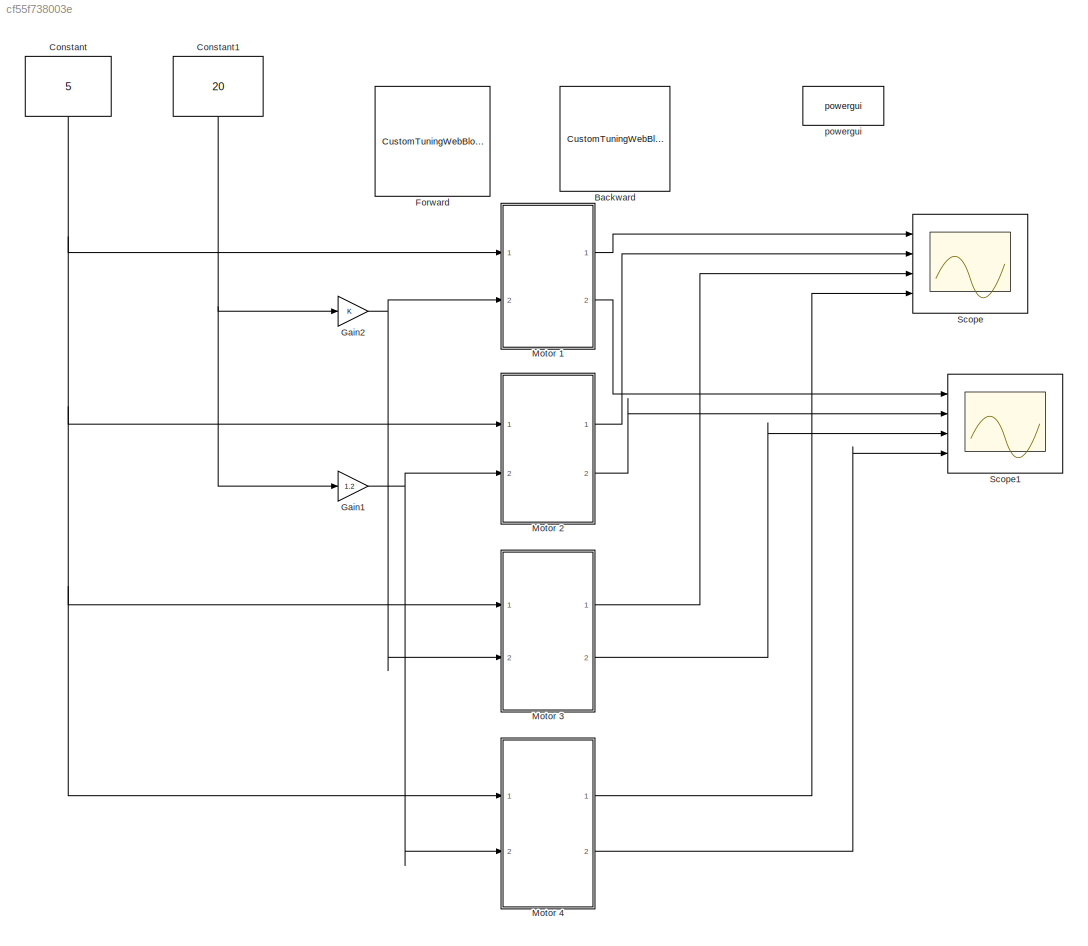
MODEL slx_cf55f738003e
KIND model
CONFIG AbsTol = auto
CONFIG EnableMultiTasking = off
CONFIG FixedStep = auto
CONFIG MaxStep = auto
CONFIG MinStep = auto
CONFIG RelTol = 1e-3
CONFIG SampleTimeConstraint = Unconstrained
CONFIG SolverName = VariableStepAuto
CONFIG StartTime = 0.0
CONFIG StopTime = 1
BLOCK [CustomTuningWebBlock] Backward
  Configuration = {"components":[{"name":"CircularScaleComponent","settings":{"bounds":{"max":1.5,"min":0.5,"tickInterval":"auto"},"direction":"cw","flipLimits":0,"innerRadius":0.6636618227670849,"internalTickHeightScaleFactor":1,"labelColor":[255,255,200],"labelFont":{"font":"Arial","fontSize":12},"labelTransparency":1,"minorTickHeightScaleFactor":0.2,"needleImage":{"size":[150,150],"src":"data:image\/svg+xml;base...<+43653ch>
  LabelPosition = Hide
  ShowInitialText = on
BLOCK [Constant] Constant
  NameLocation = left
  Value = 5
BLOCK [Constant] Constant1
  NameLocation = left
  Value = 20
BLOCK [CustomTuningWebBlock] Forward
  Configuration = {"components":[{"name":"CircularScaleComponent","settings":{"bounds":{"max":1.5,"min":0.5,"tickInterval":"auto"},"direction":"cw","flipLimits":0,"innerRadius":0.6636618227670849,"internalTickHeightScaleFactor":1,"labelColor":[255,255,200],"labelFont":{"font":"Arial","fontSize":12},"labelTransparency":1,"minorTickHeightScaleFactor":0.2,"needleImage":{"size":[150,150],"src":"data:image\/svg+xml;base...<+43653ch>
  LabelPosition = Hide
  ShowInitialText = on
BLOCK [Gain] Gain1
  Gain = 1.2
BLOCK [Gain] Gain2
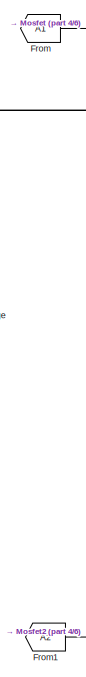
[diagram: Motor 1 - part 1/6, top left region]
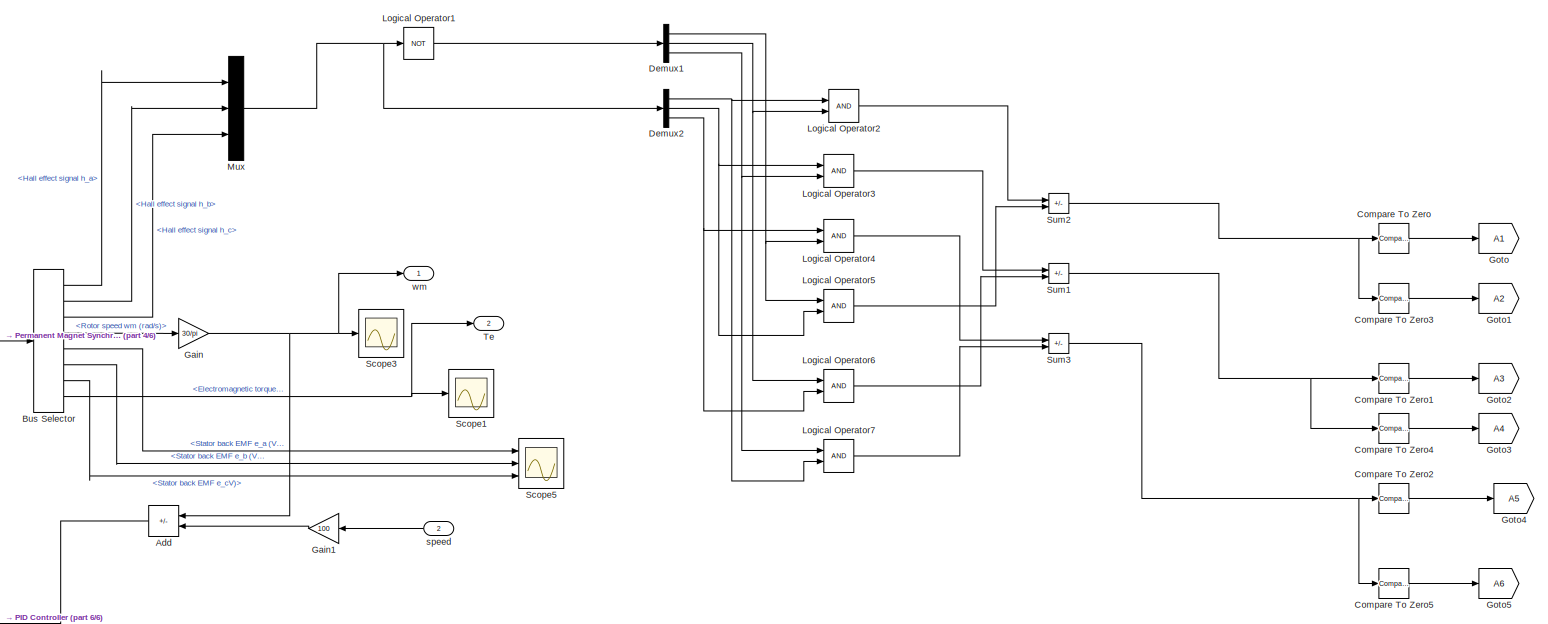
[diagram: Motor 1 - part 2/6, top right region]
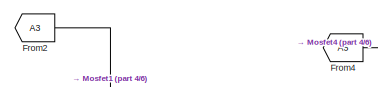
[diagram: Motor 1 - part 3/6, top left region]
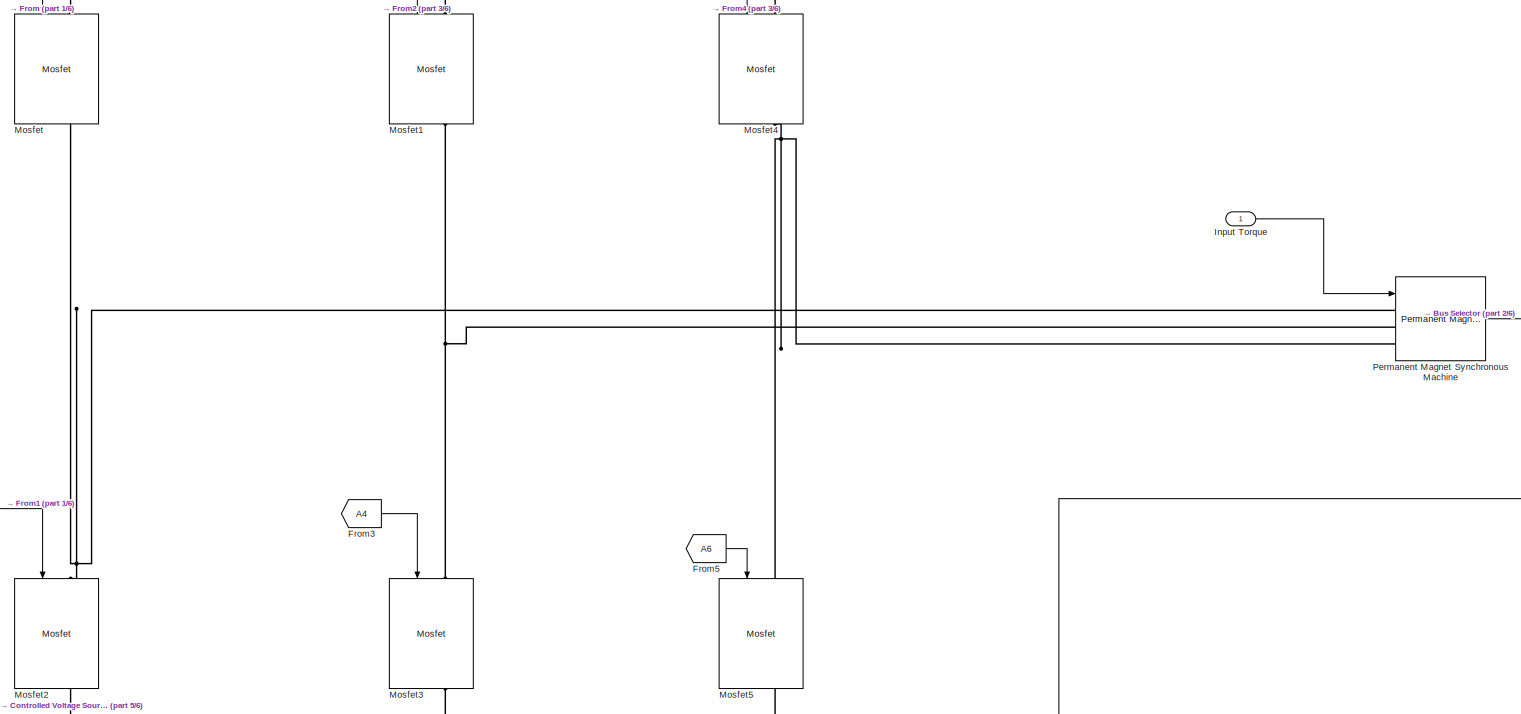
[diagram: Motor 1 - part 4/6, middle left region]
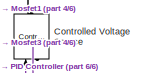
[diagram: Motor 1 - part 5/6, top left region]
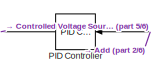
[diagram: Motor 1 - part 6/6, central region]
BLOCK [SubSystem] Motor 1
  Ports = [2, 2]
  RequestExecContextInheritance = off
BLOCK [Sum] Motor 1/Add
  IconShape = rectangular
  Inputs = -+
  Ports = [2, 1]
BLOCK [BusSelector] Motor 1/Bus Selector
  OutputSignals = Hall effect signal h_a,Hall effect signal h_b,Hall effect signal h_c,Rotor speed wm (rad/s),Stator back EMF e_a (V),Stator back EMF e_b (V),Stator back EMF e_cV),Electromagnetic torque Te (N*m)  <repeated x4 — deduplicated; at blocks: Bus Selector>
  Ports = [1, 8]
BLOCK [Reference] Motor 1/Compare To Zero  REF=simulink/Logic and Bit
Operations/Compare
To Zero
  NameLocation = top
  Ports = [1, 1]
  SourceBlock = simulink/Logic and Bit\nOperations/Compare\nTo Zero
  SourceProductBaseCode = SL
  SourceType = Compare To Zero
BLOCK [Reference] Motor 1/Compare To Zero1  REF=simulink/Logic and Bit
Operations/Compare
To Zero
  NameLocation = top
  Ports = [1, 1]
  SourceBlock = simulink/Logic and Bit\nOperations/Compare\nTo Zero
  SourceProductBaseCode = SL
  SourceType = Compare To Zero
BLOCK [Reference] Motor 1/Compare To Zero2  REF=simulink/Logic and Bit
Operations/Compare
To Zero
  NameLocation = top
  Ports = [1, 1]
  SourceBlock = simulink/Logic and Bit\nOperations/Compare\nTo Zero
  SourceProductBaseCode = SL
  SourceType = Compare To Zero
BLOCK [Reference] Motor 1/Compare To Zero3  REF=simulink/Logic and Bit
Operations/Compare
To Zero
  NameLocation = top
  Ports = [1, 1]
  SourceBlock = simulink/Logic and Bit\nOperations/Compare\nTo Zero
  SourceProductBaseCode = SL
  SourceType = Compare To Zero
BLOCK [Reference] Motor 1/Compare To Zero4  REF=simulink/Logic and Bit
Operations/Compare
To Zero
  NameLocation = top
  Ports = [1, 1]
  SourceBlock = simulink/Logic and Bit\nOperations/Compare\nTo Zero
  SourceProductBaseCode = SL
  SourceType = Compare To Zero
BLOCK [Reference] Motor 1/Compare To Zero5  REF=simulink/Logic and Bit
Operations/Compare
To Zero
  NameLocation = top
  Ports = [1, 1]
  SourceBlock = simulink/Logic and Bit\nOperations/Compare\nTo Zero
  SourceProductBaseCode = SL
  SourceType = Compare To Zero
BLOCK [Reference] Motor 1/Controlled Voltage Source  REF=spsControlledVoltageSourceLib/Controlled Voltage Source
  Ports = [1, 0, 0, 0, 0, 1, 1]
  SourceBlock = spsControlledVoltageSourceLib/Controlled Voltage Source
  SourceProductBaseCode = PS
  SourceType = Controlled Voltage Source
BLOCK [Demux] Motor 1/Demux1
  Outputs = 3
  Ports = [1, 3]
BLOCK [Demux] Motor 1/Demux2
  Outputs = 3
  Ports = [1, 3]
BLOCK [From] Motor 1/From
  GotoTag = A1
BLOCK [From] Motor 1/From1
  GotoTag = A2
BLOCK [From] Motor 1/From2
  GotoTag = A3
BLOCK [From] Motor 1/From3
  GotoTag = A4
BLOCK [From] Motor 1/From4
  GotoTag = A5
BLOCK [From] Motor 1/From5
  GotoTag = A6
BLOCK [Gain] Motor 1/Gain
  Gain = 30/pi
BLOCK [Gain] Motor 1/Gain1
  Gain = 100
  NameLocation = top
BLOCK [Goto] Motor 1/Goto
  GotoTag = A1
BLOCK [Goto] Motor 1/Goto1
  GotoTag = A2
BLOCK [Goto] Motor 1/Goto2
  GotoTag = A3
BLOCK [Goto] Motor 1/Goto3
  GotoTag = A4
BLOCK [Goto] Motor 1/Goto4
  GotoTag = A5
BLOCK [Goto] Motor 1/Goto5
  GotoTag = A6
BLOCK [Inport] Motor 1/Input Torque
BLOCK [Logic] Motor 1/Logical Operator1
  AllPortsSameDT = off
  Operator = NOT
  OutDataTypeStr = boolean
  Ports = [1, 1]
BLOCK [Logic] Motor 1/Logical Operator2
  AllPortsSameDT = off
  OutDataTypeStr = boolean
  Ports = [2, 1]
BLOCK [Logic] Motor 1/Logical Operator3
  AllPortsSameDT = off
  OutDataTypeStr = boolean
  Ports = [2, 1]
BLOCK [Logic] Motor 1/Logical Operator4
  AllPortsSameDT = off
  OutDataTypeStr = boolean
  Ports = [2, 1]
BLOCK [Logic] Motor 1/Logical Operator5
  AllPortsSameDT = off
  OutDataTypeStr = boolean
  Ports = [2, 1]
BLOCK [Logic] Motor 1/Logical Operator6
  AllPortsSameDT = off
  OutDataTypeStr = boolean
  Ports = [2, 1]
BLOCK [Logic] Motor 1/Logical Operator7
  AllPortsSameDT = off
  OutDataTypeStr = boolean
  Ports = [2, 1]
BLOCK [Reference] Motor 1/Mosfet  REF=spsMosfetLib/Mosfet
  NameLocation = left
  Ports = [1, 1, 0, 0, 0, 1, 1]
  SourceBlock = spsMosfetLib/Mosfet
  SourceProductBaseCode = PS
  SourceType = Mosfet
BLOCK [Reference] Motor 1/Mosfet1  REF=spsMosfetLib/Mosfet
  NameLocation = left
  Ports = [1, 1, 0, 0, 0, 1, 1]
  SourceBlock = spsMosfetLib/Mosfet
  SourceProductBaseCode = PS
  SourceType = Mosfet
BLOCK [Reference] Motor 1/Mosfet2  REF=spsMosfetLib/Mosfet
  NameLocation = left
  Ports = [1, 1, 0, 0, 0, 1, 1]
  SourceBlock = spsMosfetLib/Mosfet
  SourceProductBaseCode = PS
  SourceType = Mosfet
BLOCK [Reference] Motor 1/Mosfet3  REF=spsMosfetLib/Mosfet
  NameLocation = left
  Ports = [1, 1, 0, 0, 0, 1, 1]
  SourceBlock = spsMosfetLib/Mosfet
  SourceProductBaseCode = PS
  SourceType = Mosfet
BLOCK [Reference] Motor 1/Mosfet4  REF=spsMosfetLib/Mosfet
  NameLocation = left
  Ports = [1, 1, 0, 0, 0, 1, 1]
  SourceBlock = spsMosfetLib/Mosfet
  SourceProductBaseCode = PS
  SourceType = Mosfet
BLOCK [Reference] Motor 1/Mosfet5  REF=spsMosfetLib/Mosfet
  NameLocation = left
  Ports = [1, 1, 0, 0, 0, 1, 1]
  SourceBlock = spsMosfetLib/Mosfet
  SourceProductBaseCode = PS
  SourceType = Mosfet
BLOCK [Mux] Motor 1/Mux
  DisplayOption = bar
  Inputs = 3
  Ports = [3, 1]
BLOCK [Reference] Motor 1/PID Controller  REF=slpidlib/PID Controller
  NameLocation = top
  Ports = [1, 1]
  SourceBlock = slpidlib/PID Controller
  SourceProductBaseCode = SL
  SourceType = PID 1dof
BLOCK [Reference] Motor 1/Permanent Magnet Synchronous Machine  REF=spsPermanentMagnetSynchronousMachineLib/Permanent Magnet
Synchronous Machine
  Ports = [1, 1, 0, 0, 0, 3]
  SourceBlock = spsPermanentMagnetSynchronousMachineLib/Permanent Magnet\nSynchronous Machine
  SourceProductBaseCode = PS
  SourceType = Permanent Magnet Synchronous Machine
BLOCK [Scope] Motor 1/Scope1
  Floating = off
  NumInputPorts = 1
  Ports = [1]
  ScopeSpecificationString = Simulink.scopes.TimeScopeBlockCfg('CurrentConfiguration', extmgr.ConfigurationSet(extmgr.Configuration('Core','General UI',true),extmgr.Configuration('Core','Source UI',true),extmgr.Configuration('Sources','WiredSimulink',true,'DataLoggingVariableName','ScopeData1'),extmgr.Configuration('Visuals','Time Domain',true,'SerializedDisplays',{struct('MinYLimReal','-15.67404','MaxYLimReal','52.63352','YL...<+1487ch>  <repeated x4 — deduplicated; at blocks: Scope1>
BLOCK [Scope] Motor 1/Scope3
  Floating = off
  NumInputPorts = 1
  Ports = [1]
  ScopeSpecificationString = Simulink.scopes.TimeScopeBlockCfg('CurrentConfiguration', extmgr.ConfigurationSet(extmgr.Configuration('Core','General UI',true),extmgr.Configuration('Core','Source UI',true),extmgr.Configuration('Sources','WiredSimulink',true,'DataLoggingVariableName','ScopeData2'),extmgr.Configuration('Visuals','Time Domain',true,'SerializedDisplays',{struct('MinYLimReal','-253.95955','MaxYLimReal','1375.95991',...<+1445ch>  <repeated x4 — deduplicated; at blocks: Scope3>
BLOCK [Scope] Motor 1/Scope5
  Floating = off
  NumInputPorts = 3
  Ports = [3]
  ScopeSpecificationString = Simulink.scopes.TimeScopeBlockCfg('CurrentConfiguration', extmgr.ConfigurationSet(extmgr.Configuration('Core','General UI',true),extmgr.Configuration('Core','Source UI',true),extmgr.Configuration('Sources','WiredSimulink',true),extmgr.Configuration('Visuals','Time Domain',true,'SerializedDisplays',{struct('MinYLimReal','-75.83196','MaxYLimReal','75.83196','YLabelReal','','MinYLimMag','0.00000','Ma...<+1459ch>  <repeated x4 — deduplicated; at blocks: Scope5>
BLOCK [Sum] Motor 1/Sum1
  IconShape = rectangular
  Inputs = +-
  OutDataTypeStr = double
  Ports = [2, 1]
BLOCK [Sum] Motor 1/Sum2
  IconShape = rectangular
  Inputs = +-
  OutDataTypeStr = double
  Ports = [2, 1]
BLOCK [Sum] Motor 1/Sum3
  IconShape = rectangular
  Inputs = +-
  OutDataTypeStr = double
  Ports = [2, 1]
BLOCK [Outport] Motor 1/Te
  Port = 2
BLOCK [Inport] Motor 1/speed
  Port = 2
BLOCK [Outport] Motor 1/wm
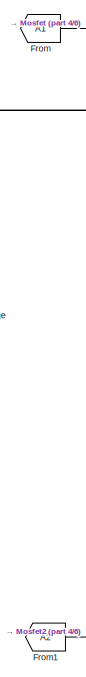
[diagram: Motor 2 - part 1/6, top left region]
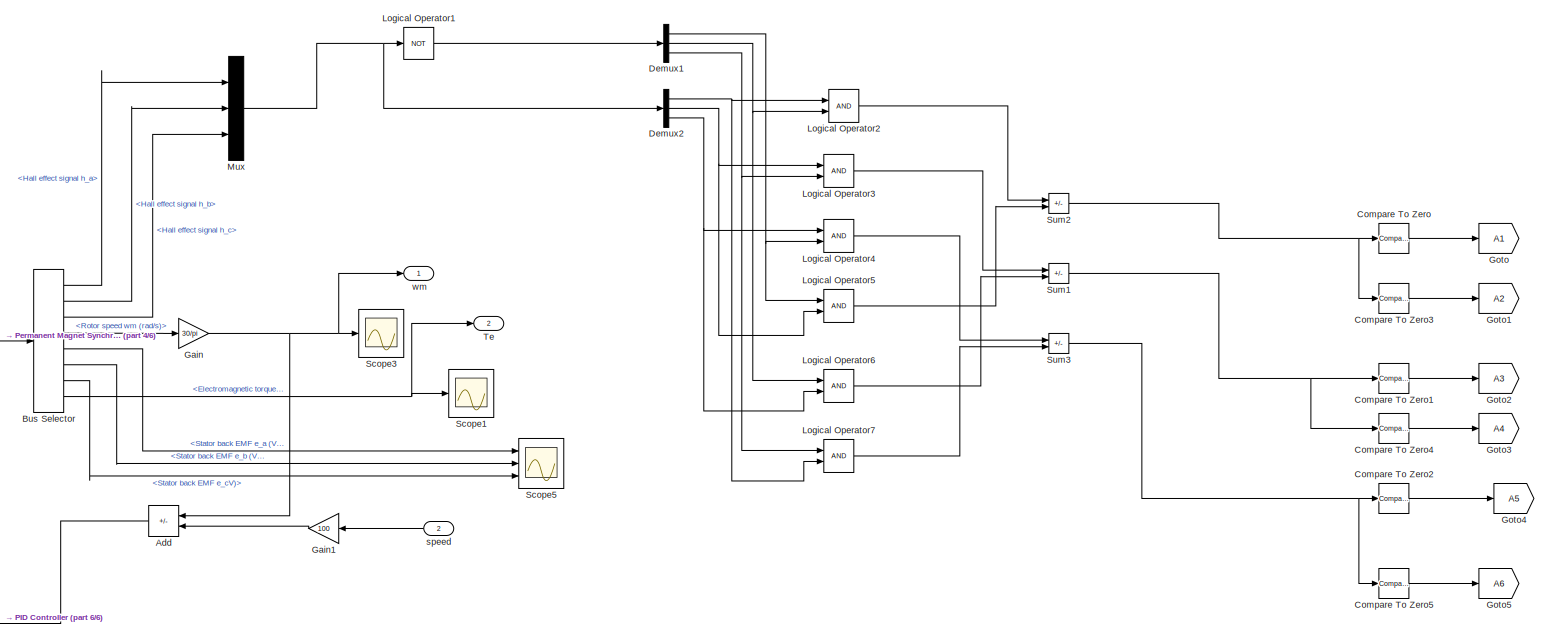
[diagram: Motor 2 - part 2/6, top right region]
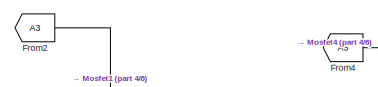
[diagram: Motor 2 - part 3/6, top left region]
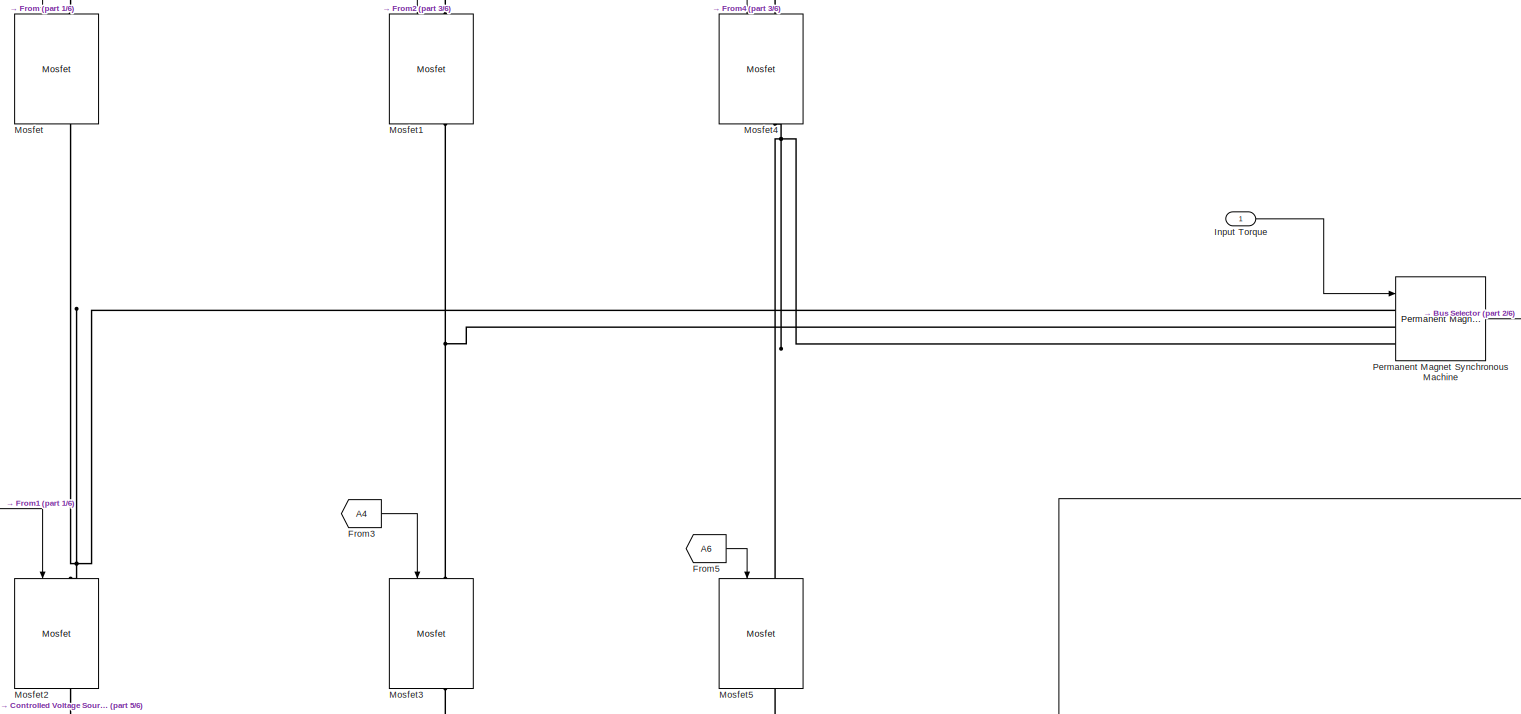
[diagram: Motor 2 - part 4/6, middle left region]
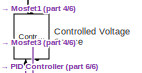
[diagram: Motor 2 - part 5/6, top left region]
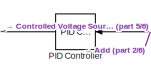
[diagram: Motor 2 - part 6/6, central region]
BLOCK [SubSystem] Motor 2
  Ports = [2, 2]
  RequestExecContextInheritance = off
BLOCK [Sum] Motor 2/Add
  IconShape = rectangular
  Inputs = -+
  Ports = [2, 1]
BLOCK [BusSelector] Motor 2/Bus Selector
  Ports = [1, 8]
BLOCK [Reference] Motor 2/Compare To Zero  REF=simulink/Logic and Bit
Operations/Compare
To Zero
  NameLocation = top
  Ports = [1, 1]
  SourceBlock = simulink/Logic and Bit\nOperations/Compare\nTo Zero
  SourceProductBaseCode = SL
  SourceType = Compare To Zero
BLOCK [Reference] Motor 2/Compare To Zero1  REF=simulink/Logic and Bit
Operations/Compare
To Zero
  NameLocation = top
  Ports = [1, 1]
  SourceBlock = simulink/Logic and Bit\nOperations/Compare\nTo Zero
  SourceProductBaseCode = SL
  SourceType = Compare To Zero
BLOCK [Reference] Motor 2/Compare To Zero2  REF=simulink/Logic and Bit
Operations/Compare
To Zero
  NameLocation = top
  Ports = [1, 1]
  SourceBlock = simulink/Logic and Bit\nOperations/Compare\nTo Zero
  SourceProductBaseCode = SL
  SourceType = Compare To Zero
BLOCK [Reference] Motor 2/Compare To Zero3  REF=simulink/Logic and Bit
Operations/Compare
To Zero
  NameLocation = top
  Ports = [1, 1]
  SourceBlock = simulink/Logic and Bit\nOperations/Compare\nTo Zero
  SourceProductBaseCode = SL
  SourceType = Compare To Zero
BLOCK [Reference] Motor 2/Compare To Zero4  REF=simulink/Logic and Bit
Operations/Compare
To Zero
  NameLocation = top
  Ports = [1, 1]
  SourceBlock = simulink/Logic and Bit\nOperations/Compare\nTo Zero
  SourceProductBaseCode = SL
  SourceType = Compare To Zero
BLOCK [Reference] Motor 2/Compare To Zero5  REF=simulink/Logic and Bit
Operations/Compare
To Zero
  NameLocation = top
  Ports = [1, 1]
  SourceBlock = simulink/Logic and Bit\nOperations/Compare\nTo Zero
  SourceProductBaseCode = SL
  SourceType = Compare To Zero
BLOCK [Reference] Motor 2/Controlled Voltage Source  REF=spsControlledVoltageSourceLib/Controlled Voltage Source
  Ports = [1, 0, 0, 0, 0, 1, 1]
  SourceBlock = spsControlledVoltageSourceLib/Controlled Voltage Source
  SourceProductBaseCode = PS
  SourceType = Controlled Voltage Source
BLOCK [Demux] Motor 2/Demux1
  Outputs = 3
  Ports = [1, 3]
BLOCK [Demux] Motor 2/Demux2
  Outputs = 3
  Ports = [1, 3]
BLOCK [From] Motor 2/From
  GotoTag = A1
BLOCK [From] Motor 2/From1
  GotoTag = A2
BLOCK [From] Motor 2/From2
  GotoTag = A3
BLOCK [From] Motor 2/From3
  GotoTag = A4
BLOCK [From] Motor 2/From4
  GotoTag = A5
BLOCK [From] Motor 2/From5
  GotoTag = A6
BLOCK [Gain] Motor 2/Gain
  Gain = 30/pi
BLOCK [Gain] Motor 2/Gain1
  Gain = 100
  NameLocation = top
BLOCK [Goto] Motor 2/Goto
  GotoTag = A1
BLOCK [Goto] Motor 2/Goto1
  GotoTag = A2
BLOCK [Goto] Motor 2/Goto2
  GotoTag = A3
BLOCK [Goto] Motor 2/Goto3
  GotoTag = A4
BLOCK [Goto] Motor 2/Goto4
  GotoTag = A5
BLOCK [Goto] Motor 2/Goto5
  GotoTag = A6
BLOCK [Inport] Motor 2/Input Torque
BLOCK [Logic] Motor 2/Logical Operator1
  AllPortsSameDT = off
  Operator = NOT
  OutDataTypeStr = boolean
  Ports = [1, 1]
BLOCK [Logic] Motor 2/Logical Operator2
  AllPortsSameDT = off
  OutDataTypeStr = boolean
  Ports = [2, 1]
BLOCK [Logic] Motor 2/Logical Operator3
  AllPortsSameDT = off
  OutDataTypeStr = boolean
  Ports = [2, 1]
BLOCK [Logic] Motor 2/Logical Operator4
  AllPortsSameDT = off
  OutDataTypeStr = boolean
  Ports = [2, 1]
BLOCK [Logic] Motor 2/Logical Operator5
  AllPortsSameDT = off
  OutDataTypeStr = boolean
  Ports = [2, 1]
BLOCK [Logic] Motor 2/Logical Operator6
  AllPortsSameDT = off
  OutDataTypeStr = boolean
  Ports = [2, 1]
BLOCK [Logic] Motor 2/Logical Operator7
  AllPortsSameDT = off
  OutDataTypeStr = boolean
  Ports = [2, 1]
BLOCK [Reference] Motor 2/Mosfet  REF=spsMosfetLib/Mosfet
  NameLocation = left
  Ports = [1, 1, 0, 0, 0, 1, 1]
  SourceBlock = spsMosfetLib/Mosfet
  SourceProductBaseCode = PS
  SourceType = Mosfet
BLOCK [Reference] Motor 2/Mosfet1  REF=spsMosfetLib/Mosfet
  NameLocation = left
  Ports = [1, 1, 0, 0, 0, 1, 1]
  SourceBlock = spsMosfetLib/Mosfet
  SourceProductBaseCode = PS
  SourceType = Mosfet
BLOCK [Reference] Motor 2/Mosfet2  REF=spsMosfetLib/Mosfet
  NameLocation = left
  Ports = [1, 1, 0, 0, 0, 1, 1]
  SourceBlock = spsMosfetLib/Mosfet
  SourceProductBaseCode = PS
  SourceType = Mosfet
BLOCK [Reference] Motor 2/Mosfet3  REF=spsMosfetLib/Mosfet
  NameLocation = left
  Ports = [1, 1, 0, 0, 0, 1, 1]
  SourceBlock = spsMosfetLib/Mosfet
  SourceProductBaseCode = PS
  SourceType = Mosfet
BLOCK [Reference] Motor 2/Mosfet4  REF=spsMosfetLib/Mosfet
  NameLocation = left
  Ports = [1, 1, 0, 0, 0, 1, 1]
  SourceBlock = spsMosfetLib/Mosfet
  SourceProductBaseCode = PS
  SourceType = Mosfet
BLOCK [Reference] Motor 2/Mosfet5  REF=spsMosfetLib/Mosfet
  NameLocation = left
  Ports = [1, 1, 0, 0, 0, 1, 1]
  SourceBlock = spsMosfetLib/Mosfet
  SourceProductBaseCode = PS
  SourceType = Mosfet
BLOCK [Mux] Motor 2/Mux
  DisplayOption = bar
  Inputs = 3
  Ports = [3, 1]
BLOCK [Reference] Motor 2/PID Controller  REF=slpidlib/PID Controller
  NameLocation = top
  Ports = [1, 1]
  SourceBlock = slpidlib/PID Controller
  SourceProductBaseCode = SL
  SourceType = PID 1dof
BLOCK [Reference] Motor 2/Permanent Magnet Synchronous Machine  REF=spsPermanentMagnetSynchronousMachineLib/Permanent Magnet
Synchronous Machine
  Ports = [1, 1, 0, 0, 0, 3]
  SourceBlock = spsPermanentMagnetSynchronousMachineLib/Permanent Magnet\nSynchronous Machine
  SourceProductBaseCode = PS
  SourceType = Permanent Magnet Synchronous Machine
BLOCK [Scope] Motor 2/Scope1
  Floating = off
  NumInputPorts = 1
  Ports = [1]
BLOCK [Scope] Motor 2/Scope3
  Floating = off
  NumInputPorts = 1
  Ports = [1]
BLOCK [Scope] Motor 2/Scope5
  Floating = off
  NumInputPorts = 3
  Ports = [3]
BLOCK [Sum] Motor 2/Sum1
  IconShape = rectangular
  Inputs = +-
  OutDataTypeStr = double
  Ports = [2, 1]
BLOCK [Sum] Motor 2/Sum2
  IconShape = rectangular
  Inputs = +-
  OutDataTypeStr = double
  Ports = [2, 1]
BLOCK [Sum] Motor 2/Sum3
  IconShape = rectangular
  Inputs = +-
  OutDataTypeStr = double
  Ports = [2, 1]
BLOCK [Outport] Motor 2/Te
  Port = 2
BLOCK [Inport] Motor 2/speed
  Port = 2
BLOCK [Outport] Motor 2/wm
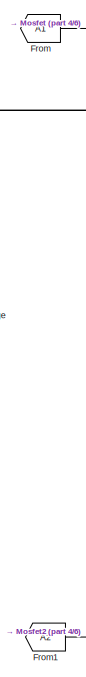
[diagram: Motor 3 - part 1/6, top left region]
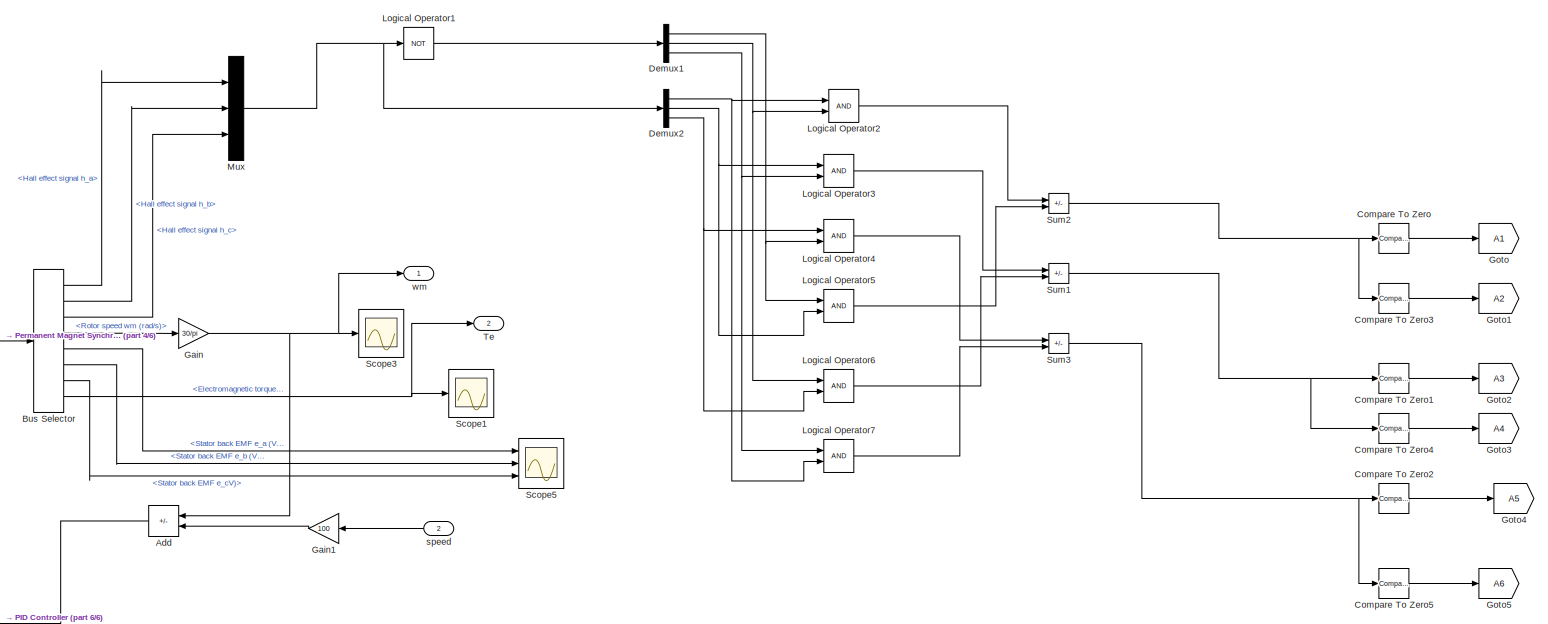
[diagram: Motor 3 - part 2/6, top right region]
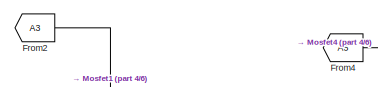
[diagram: Motor 3 - part 3/6, top left region]
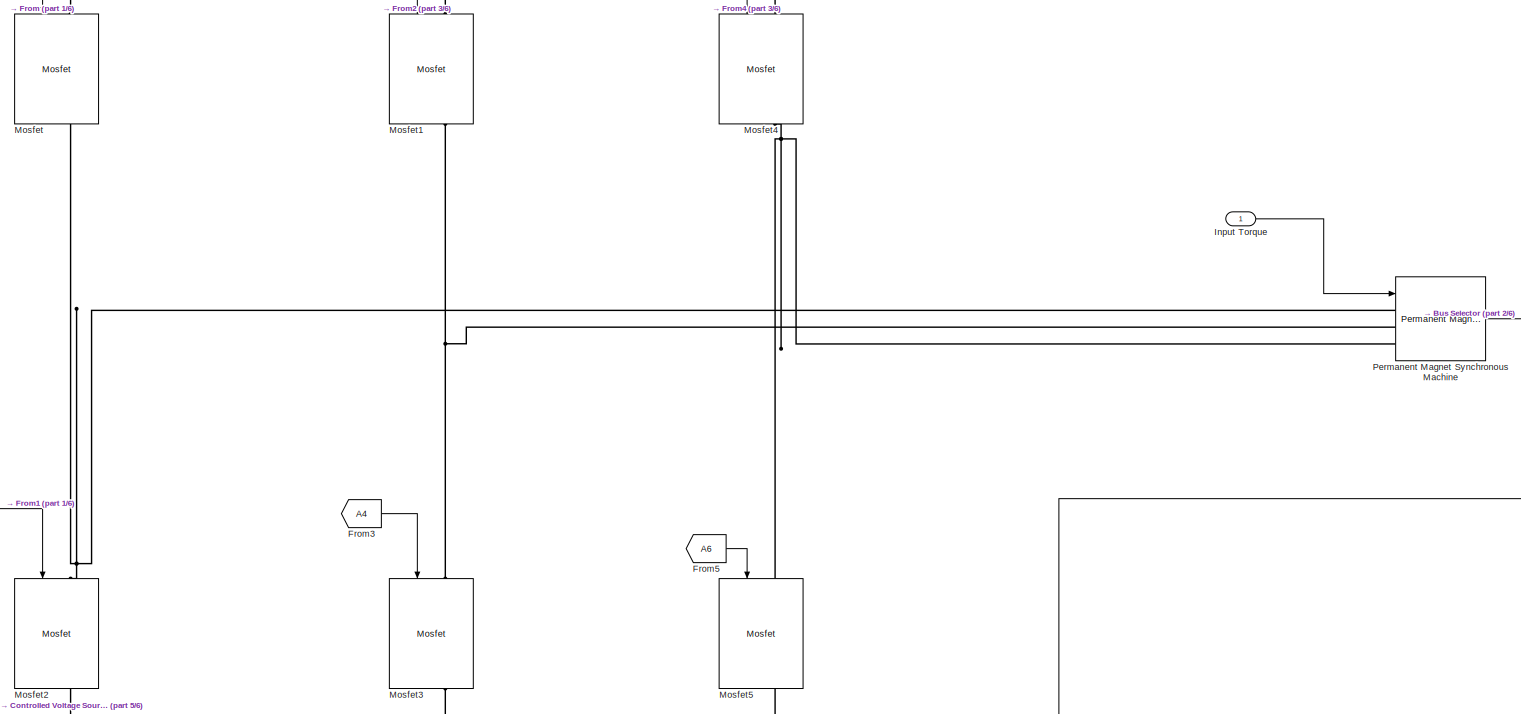
[diagram: Motor 3 - part 4/6, middle left region]
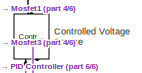
[diagram: Motor 3 - part 5/6, top left region]
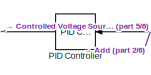
[diagram: Motor 3 - part 6/6, central region]
BLOCK [SubSystem] Motor 3
  Ports = [2, 2]
  RequestExecContextInheritance = off
BLOCK [Sum] Motor 3/Add
  IconShape = rectangular
  Inputs = -+
  Ports = [2, 1]
BLOCK [BusSelector] Motor 3/Bus Selector
  Ports = [1, 8]
BLOCK [Reference] Motor 3/Compare To Zero  REF=simulink/Logic and Bit
Operations/Compare
To Zero
  NameLocation = top
  Ports = [1, 1]
  SourceBlock = simulink/Logic and Bit\nOperations/Compare\nTo Zero
  SourceProductBaseCode = SL
  SourceType = Compare To Zero
BLOCK [Reference] Motor 3/Compare To Zero1  REF=simulink/Logic and Bit
Operations/Compare
To Zero
  NameLocation = top
  Ports = [1, 1]
  SourceBlock = simulink/Logic and Bit\nOperations/Compare\nTo Zero
  SourceProductBaseCode = SL
  SourceType = Compare To Zero
BLOCK [Reference] Motor 3/Compare To Zero2  REF=simulink/Logic and Bit
Operations/Compare
To Zero
  NameLocation = top
  Ports = [1, 1]
  SourceBlock = simulink/Logic and Bit\nOperations/Compare\nTo Zero
  SourceProductBaseCode = SL
  SourceType = Compare To Zero
BLOCK [Reference] Motor 3/Compare To Zero3  REF=simulink/Logic and Bit
Operations/Compare
To Zero
  NameLocation = top
  Ports = [1, 1]
  SourceBlock = simulink/Logic and Bit\nOperations/Compare\nTo Zero
  SourceProductBaseCode = SL
  SourceType = Compare To Zero
BLOCK [Reference] Motor 3/Compare To Zero4  REF=simulink/Logic and Bit
Operations/Compare
To Zero
  NameLocation = top
  Ports = [1, 1]
  SourceBlock = simulink/Logic and Bit\nOperations/Compare\nTo Zero
  SourceProductBaseCode = SL
  SourceType = Compare To Zero
BLOCK [Reference] Motor 3/Compare To Zero5  REF=simulink/Logic and Bit
Operations/Compare
To Zero
  NameLocation = top
  Ports = [1, 1]
  SourceBlock = simulink/Logic and Bit\nOperations/Compare\nTo Zero
  SourceProductBaseCode = SL
  SourceType = Compare To Zero
BLOCK [Reference] Motor 3/Controlled Voltage Source  REF=spsControlledVoltageSourceLib/Controlled Voltage Source
  Ports = [1, 0, 0, 0, 0, 1, 1]
  SourceBlock = spsControlledVoltageSourceLib/Controlled Voltage Source
  SourceProductBaseCode = PS
  SourceType = Controlled Voltage Source
BLOCK [Demux] Motor 3/Demux1
  Outputs = 3
  Ports = [1, 3]
BLOCK [Demux] Motor 3/Demux2
  Outputs = 3
  Ports = [1, 3]
BLOCK [From] Motor 3/From
  GotoTag = A1
BLOCK [From] Motor 3/From1
  GotoTag = A2
BLOCK [From] Motor 3/From2
  GotoTag = A3
BLOCK [From] Motor 3/From3
  GotoTag = A4
BLOCK [From] Motor 3/From4
  GotoTag = A5
BLOCK [From] Motor 3/From5
  GotoTag = A6
BLOCK [Gain] Motor 3/Gain
  Gain = 30/pi
BLOCK [Gain] Motor 3/Gain1
  Gain = 100
  NameLocation = top
BLOCK [Goto] Motor 3/Goto
  GotoTag = A1
BLOCK [Goto] Motor 3/Goto1
  GotoTag = A2
BLOCK [Goto] Motor 3/Goto2
  GotoTag = A3
BLOCK [Goto] Motor 3/Goto3
  GotoTag = A4
BLOCK [Goto] Motor 3/Goto4
  GotoTag = A5
BLOCK [Goto] Motor 3/Goto5
  GotoTag = A6
BLOCK [Inport] Motor 3/Input Torque
BLOCK [Logic] Motor 3/Logical Operator1
  AllPortsSameDT = off
  Operator = NOT
  OutDataTypeStr = boolean
  Ports = [1, 1]
BLOCK [Logic] Motor 3/Logical Operator2
  AllPortsSameDT = off
  OutDataTypeStr = boolean
  Ports = [2, 1]
BLOCK [Logic] Motor 3/Logical Operator3
  AllPortsSameDT = off
  OutDataTypeStr = boolean
  Ports = [2, 1]
BLOCK [Logic] Motor 3/Logical Operator4
  AllPortsSameDT = off
  OutDataTypeStr = boolean
  Ports = [2, 1]
BLOCK [Logic] Motor 3/Logical Operator5
  AllPortsSameDT = off
  OutDataTypeStr = boolean
  Ports = [2, 1]
BLOCK [Logic] Motor 3/Logical Operator6
  AllPortsSameDT = off
  OutDataTypeStr = boolean
  Ports = [2, 1]
BLOCK [Logic] Motor 3/Logical Operator7
  AllPortsSameDT = off
  OutDataTypeStr = boolean
  Ports = [2, 1]
BLOCK [Reference] Motor 3/Mosfet  REF=spsMosfetLib/Mosfet
  NameLocation = left
  Ports = [1, 1, 0, 0, 0, 1, 1]
  SourceBlock = spsMosfetLib/Mosfet
  SourceProductBaseCode = PS
  SourceType = Mosfet
BLOCK [Reference] Motor 3/Mosfet1  REF=spsMosfetLib/Mosfet
  NameLocation = left
  Ports = [1, 1, 0, 0, 0, 1, 1]
  SourceBlock = spsMosfetLib/Mosfet
  SourceProductBaseCode = PS
  SourceType = Mosfet
BLOCK [Reference] Motor 3/Mosfet2  REF=spsMosfetLib/Mosfet
  NameLocation = left
  Ports = [1, 1, 0, 0, 0, 1, 1]
  SourceBlock = spsMosfetLib/Mosfet
  SourceProductBaseCode = PS
  SourceType = Mosfet
BLOCK [Reference] Motor 3/Mosfet3  REF=spsMosfetLib/Mosfet
  NameLocation = left
  Ports = [1, 1, 0, 0, 0, 1, 1]
  SourceBlock = spsMosfetLib/Mosfet
  SourceProductBaseCode = PS
  SourceType = Mosfet
BLOCK [Reference] Motor 3/Mosfet4  REF=spsMosfetLib/Mosfet
  NameLocation = left
  Ports = [1, 1, 0, 0, 0, 1, 1]
  SourceBlock = spsMosfetLib/Mosfet
  SourceProductBaseCode = PS
  SourceType = Mosfet
BLOCK [Reference] Motor 3/Mosfet5  REF=spsMosfetLib/Mosfet
  NameLocation = left
  Ports = [1, 1, 0, 0, 0, 1, 1]
  SourceBlock = spsMosfetLib/Mosfet
  SourceProductBaseCode = PS
  SourceType = Mosfet
BLOCK [Mux] Motor 3/Mux
  DisplayOption = bar
  Inputs = 3
  Ports = [3, 1]
BLOCK [Reference] Motor 3/PID Controller  REF=slpidlib/PID Controller
  NameLocation = top
  Ports = [1, 1]
  SourceBlock = slpidlib/PID Controller
  SourceProductBaseCode = SL
  SourceType = PID 1dof
BLOCK [Reference] Motor 3/Permanent Magnet Synchronous Machine  REF=spsPermanentMagnetSynchronousMachineLib/Permanent Magnet
Synchronous Machine
  Ports = [1, 1, 0, 0, 0, 3]
  SourceBlock = spsPermanentMagnetSynchronousMachineLib/Permanent Magnet\nSynchronous Machine
  SourceProductBaseCode = PS
  SourceType = Permanent Magnet Synchronous Machine
BLOCK [Scope] Motor 3/Scope1
  Floating = off
  NumInputPorts = 1
  Ports = [1]
BLOCK [Scope] Motor 3/Scope3
  Floating = off
  NumInputPorts = 1
  Ports = [1]
BLOCK [Scope] Motor 3/Scope5
  Floating = off
  NumInputPorts = 3
  Ports = [3]
BLOCK [Sum] Motor 3/Sum1
  IconShape = rectangular
  Inputs = +-
  OutDataTypeStr = double
  Ports = [2, 1]
BLOCK [Sum] Motor 3/Sum2
  IconShape = rectangular
  Inputs = +-
  OutDataTypeStr = double
  Ports = [2, 1]
BLOCK [Sum] Motor 3/Sum3
  IconShape = rectangular
  Inputs = +-
  OutDataTypeStr = double
  Ports = [2, 1]
BLOCK [Outport] Motor 3/Te
  Port = 2
BLOCK [Inport] Motor 3/speed
  Port = 2
BLOCK [Outport] Motor 3/wm
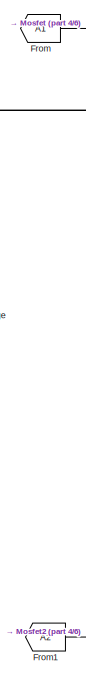
[diagram: Motor 4 - part 1/6, top left region]
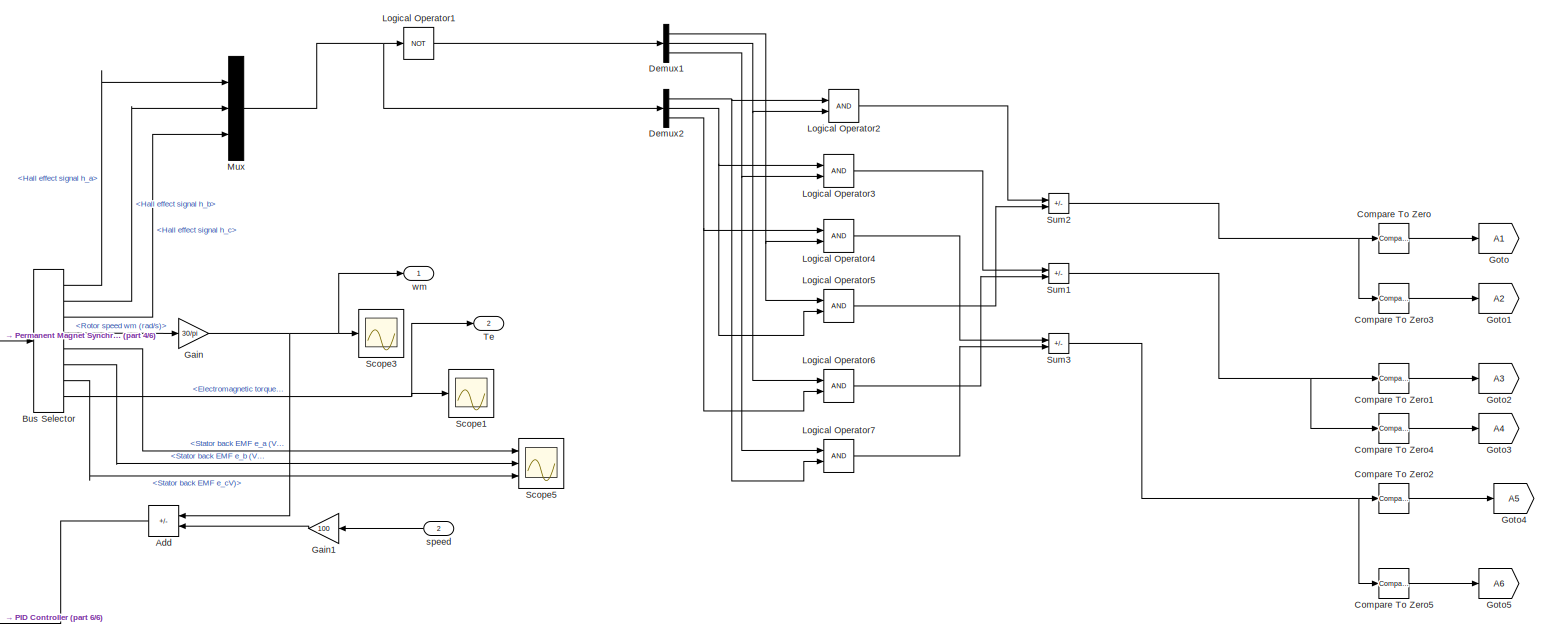
[diagram: Motor 4 - part 2/6, top right region]
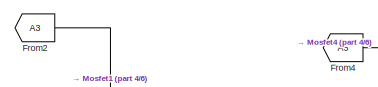
[diagram: Motor 4 - part 3/6, top left region]
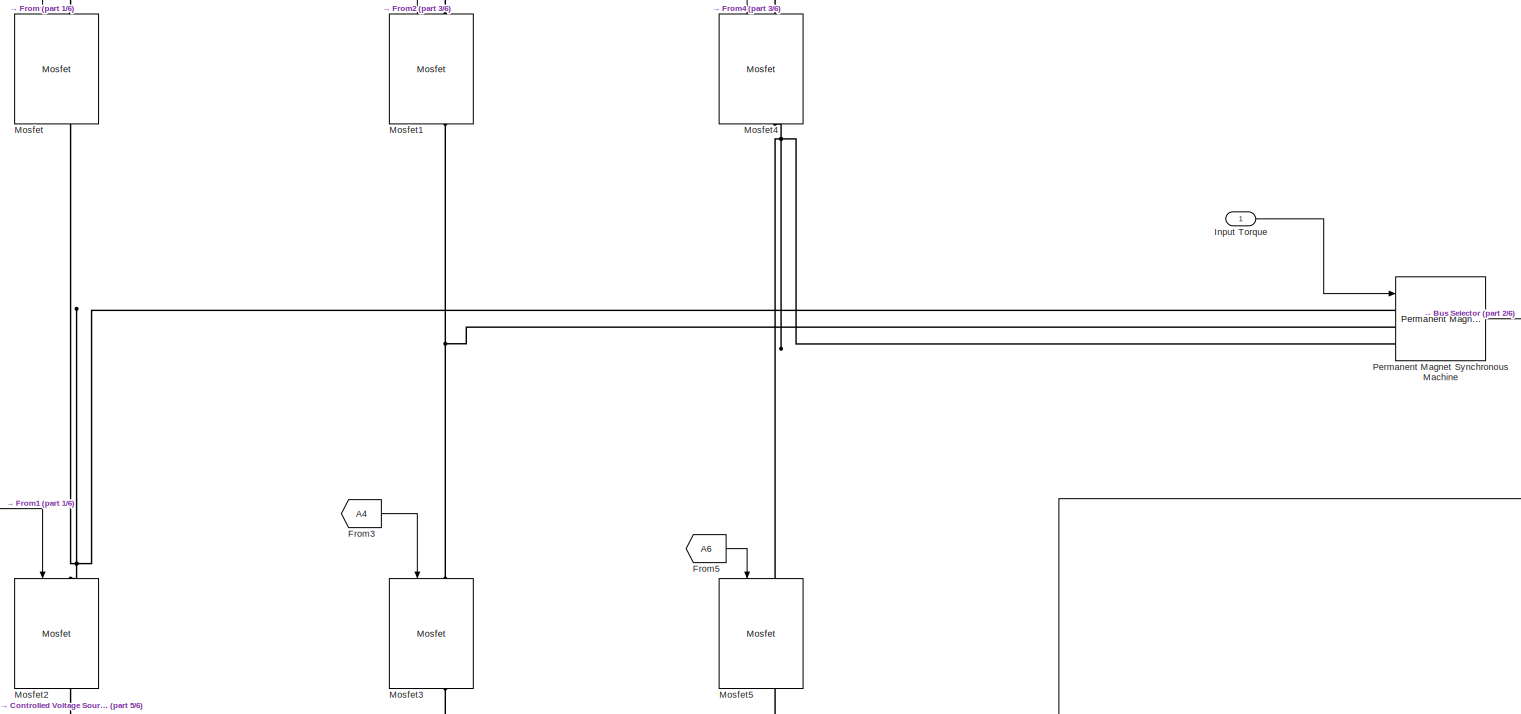
[diagram: Motor 4 - part 4/6, middle left region]
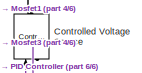
[diagram: Motor 4 - part 5/6, top left region]
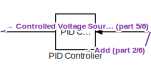
[diagram: Motor 4 - part 6/6, central region]
BLOCK [SubSystem] Motor 4
  Ports = [2, 2]
  RequestExecContextInheritance = off
BLOCK [Sum] Motor 4/Add
  IconShape = rectangular
  Inputs = -+
  Ports = [2, 1]
BLOCK [BusSelector] Motor 4/Bus Selector
  Ports = [1, 8]
BLOCK [Reference] Motor 4/Compare To Zero  REF=simulink/Logic and Bit
Operations/Compare
To Zero
  NameLocation = top
  Ports = [1, 1]
  SourceBlock = simulink/Logic and Bit\nOperations/Compare\nTo Zero
  SourceProductBaseCode = SL
  SourceType = Compare To Zero
BLOCK [Reference] Motor 4/Compare To Zero1  REF=simulink/Logic and Bit
Operations/Compare
To Zero
  NameLocation = top
  Ports = [1, 1]
  SourceBlock = simulink/Logic and Bit\nOperations/Compare\nTo Zero
  SourceProductBaseCode = SL
  SourceType = Compare To Zero
BLOCK [Reference] Motor 4/Compare To Zero2  REF=simulink/Logic and Bit
Operations/Compare
To Zero
  NameLocation = top
  Ports = [1, 1]
  SourceBlock = simulink/Logic and Bit\nOperations/Compare\nTo Zero
  SourceProductBaseCode = SL
  SourceType = Compare To Zero
BLOCK [Reference] Motor 4/Compare To Zero3  REF=simulink/Logic and Bit
Operations/Compare
To Zero
  NameLocation = top
  Ports = [1, 1]
  SourceBlock = simulink/Logic and Bit\nOperations/Compare\nTo Zero
  SourceProductBaseCode = SL
  SourceType = Compare To Zero
BLOCK [Reference] Motor 4/Compare To Zero4  REF=simulink/Logic and Bit
Operations/Compare
To Zero
  NameLocation = top
  Ports = [1, 1]
  SourceBlock = simulink/Logic and Bit\nOperations/Compare\nTo Zero
  SourceProductBaseCode = SL
  SourceType = Compare To Zero
BLOCK [Reference] Motor 4/Compare To Zero5  REF=simulink/Logic and Bit
Operations/Compare
To Zero
  NameLocation = top
  Ports = [1, 1]
  SourceBlock = simulink/Logic and Bit\nOperations/Compare\nTo Zero
  SourceProductBaseCode = SL
  SourceType = Compare To Zero
BLOCK [Reference] Motor 4/Controlled Voltage Source  REF=spsControlledVoltageSourceLib/Controlled Voltage Source
  Ports = [1, 0, 0, 0, 0, 1, 1]
  SourceBlock = spsControlledVoltageSourceLib/Controlled Voltage Source
  SourceProductBaseCode = PS
  SourceType = Controlled Voltage Source
BLOCK [Demux] Motor 4/Demux1
  Outputs = 3
  Ports = [1, 3]
BLOCK [Demux] Motor 4/Demux2
  Outputs = 3
  Ports = [1, 3]
BLOCK [From] Motor 4/From
  GotoTag = A1
BLOCK [From] Motor 4/From1
  GotoTag = A2
BLOCK [From] Motor 4/From2
  GotoTag = A3
BLOCK [From] Motor 4/From3
  GotoTag = A4
BLOCK [From] Motor 4/From4
  GotoTag = A5
BLOCK [From] Motor 4/From5
  GotoTag = A6
BLOCK [Gain] Motor 4/Gain
  Gain = 30/pi
BLOCK [Gain] Motor 4/Gain1
  Gain = 100
  NameLocation = top
BLOCK [Goto] Motor 4/Goto
  GotoTag = A1
BLOCK [Goto] Motor 4/Goto1
  GotoTag = A2
BLOCK [Goto] Motor 4/Goto2
  GotoTag = A3
BLOCK [Goto] Motor 4/Goto3
  GotoTag = A4
BLOCK [Goto] Motor 4/Goto4
  GotoTag = A5
BLOCK [Goto] Motor 4/Goto5
  GotoTag = A6
BLOCK [Inport] Motor 4/Input Torque
BLOCK [Logic] Motor 4/Logical Operator1
  AllPortsSameDT = off
  Operator = NOT
  OutDataTypeStr = boolean
  Ports = [1, 1]
BLOCK [Logic] Motor 4/Logical Operator2
  AllPortsSameDT = off
  OutDataTypeStr = boolean
  Ports = [2, 1]
BLOCK [Logic] Motor 4/Logical Operator3
  AllPortsSameDT = off
  OutDataTypeStr = boolean
  Ports = [2, 1]
BLOCK [Logic] Motor 4/Logical Operator4
  AllPortsSameDT = off
  OutDataTypeStr = boolean
  Ports = [2, 1]
BLOCK [Logic] Motor 4/Logical Operator5
  AllPortsSameDT = off
  OutDataTypeStr = boolean
  Ports = [2, 1]
BLOCK [Logic] Motor 4/Logical Operator6
  AllPortsSameDT = off
  OutDataTypeStr = boolean
  Ports = [2, 1]
BLOCK [Logic] Motor 4/Logical Operator7
  AllPortsSameDT = off
  OutDataTypeStr = boolean
  Ports = [2, 1]
BLOCK [Reference] Motor 4/Mosfet  REF=spsMosfetLib/Mosfet
  NameLocation = left
  Ports = [1, 1, 0, 0, 0, 1, 1]
  SourceBlock = spsMosfetLib/Mosfet
  SourceProductBaseCode = PS
  SourceType = Mosfet
BLOCK [Reference] Motor 4/Mosfet1  REF=spsMosfetLib/Mosfet
  NameLocation = left
  Ports = [1, 1, 0, 0, 0, 1, 1]
  SourceBlock = spsMosfetLib/Mosfet
  SourceProductBaseCode = PS
  SourceType = Mosfet
BLOCK [Reference] Motor 4/Mosfet2  REF=spsMosfetLib/Mosfet
  NameLocation = left
  Ports = [1, 1, 0, 0, 0, 1, 1]
  SourceBlock = spsMosfetLib/Mosfet
  SourceProductBaseCode = PS
  SourceType = Mosfet
BLOCK [Reference] Motor 4/Mosfet3  REF=spsMosfetLib/Mosfet
  NameLocation = left
  Ports = [1, 1, 0, 0, 0, 1, 1]
  SourceBlock = spsMosfetLib/Mosfet
  SourceProductBaseCode = PS
  SourceType = Mosfet
BLOCK [Reference] Motor 4/Mosfet4  REF=spsMosfetLib/Mosfet
  NameLocation = left
  Ports = [1, 1, 0, 0, 0, 1, 1]
  SourceBlock = spsMosfetLib/Mosfet
  SourceProductBaseCode = PS
  SourceType = Mosfet
BLOCK [Reference] Motor 4/Mosfet5  REF=spsMosfetLib/Mosfet
  NameLocation = left
  Ports = [1, 1, 0, 0, 0, 1, 1]
  SourceBlock = spsMosfetLib/Mosfet
  SourceProductBaseCode = PS
  SourceType = Mosfet
BLOCK [Mux] Motor 4/Mux
  DisplayOption = bar
  Inputs = 3
  Ports = [3, 1]
BLOCK [Reference] Motor 4/PID Controller  REF=slpidlib/PID Controller
  NameLocation = top
  Ports = [1, 1]
  SourceBlock = slpidlib/PID Controller
  SourceProductBaseCode = SL
  SourceType = PID 1dof
BLOCK [Reference] Motor 4/Permanent Magnet Synchronous Machine  REF=spsPermanentMagnetSynchronousMachineLib/Permanent Magnet
Synchronous Machine
  Ports = [1, 1, 0, 0, 0, 3]
  SourceBlock = spsPermanentMagnetSynchronousMachineLib/Permanent Magnet\nSynchronous Machine
  SourceProductBaseCode = PS
  SourceType = Permanent Magnet Synchronous Machine
BLOCK [Scope] Motor 4/Scope1
  Floating = off
  NumInputPorts = 1
  Ports = [1]
BLOCK [Scope] Motor 4/Scope3
  Floating = off
  NumInputPorts = 1
  Ports = [1]
BLOCK [Scope] Motor 4/Scope5
  Floating = off
  NumInputPorts = 3
  Ports = [3]
BLOCK [Sum] Motor 4/Sum1
  IconShape = rectangular
  Inputs = +-
  OutDataTypeStr = double
  Ports = [2, 1]
BLOCK [Sum] Motor 4/Sum2
  IconShape = rectangular
  Inputs = +-
  OutDataTypeStr = double
  Ports = [2, 1]
BLOCK [Sum] Motor 4/Sum3
  IconShape = rectangular
  Inputs = +-
  OutDataTypeStr = double
  Ports = [2, 1]
BLOCK [Outport] Motor 4/Te
  Port = 2
BLOCK [Inport] Motor 4/speed
  Port = 2
BLOCK [Outport] Motor 4/wm
BLOCK [Scope] Scope
  Floating = off
  NumInputPorts = 4
  Ports = [4]
  ScopeSpecificationString = Simulink.scopes.TimeScopeBlockCfg('CurrentConfiguration', extmgr.ConfigurationSet(extmgr.Configuration('Core','General UI',true),extmgr.Configuration('Core','Source UI',true),extmgr.Configuration('Sources','WiredSimulink',true,'DataLoggingVariableName','ScopeData1'),extmgr.Configuration('Visuals','Time Domain',true,'SerializedDisplays',{struct('MinYLimReal','-347.32953','MaxYLimReal','3006.58162',...<+1546ch>
BLOCK [Scope] Scope1
  Floating = off
  NumInputPorts = 4
  Ports = [4]
  ScopeSpecificationString = Simulink.scopes.TimeScopeBlockCfg('CurrentConfiguration', extmgr.ConfigurationSet(extmgr.Configuration('Core','General UI',true),extmgr.Configuration('Core','Source UI',true),extmgr.Configuration('Sources','WiredSimulink',true,'DataLoggingVariableName','ScopeData2'),extmgr.Configuration('Visuals','Time Domain',true,'SerializedDisplays',{struct('MinYLimReal','-9.94726','MaxYLimReal','89.52531','YLa...<+1655ch>
BLOCK [Reference] powergui  REF=spspowerguiLib/powergui
  Ports = []
  Priority = 1
  SourceBlock = spspowerguiLib/powergui
  SourceProductBaseCode = PS
  SourceType = PSB option menu block
NET Constant1:1 -> Gain1:1, Gain2:1
NET Constant:1 -> Motor 1:1, Motor 2:1, Motor 3:1, Motor 4:1
NET Gain1:1 -> Motor 2:2, Motor 4:2
NET Gain2:1 -> Motor 1:2, Motor 3:2
LINE Motor 1/Add:1 -> Motor 1/PID Controller:1
LINE Motor 1/Bus Selector:1 -> Motor 1/Mux:1
LINE Motor 1/Bus Selector:2 -> Motor 1/Mux:2
LINE Motor 1/Bus Selector:3 -> Motor 1/Mux:3
LINE Motor 1/Bus Selector:4 -> Motor 1/Gain:1
LINE Motor 1/Bus Selector:5 -> Motor 1/Scope5:1
LINE Motor 1/Bus Selector:6 -> Motor 1/Scope5:2
LINE Motor 1/Bus Selector:7 -> Motor 1/Scope5:3
NET Motor 1/Bus Selector:8 -> Motor 1/Scope1:1, Motor 1/Te:1
LINE Motor 1/Compare To Zero1:1 -> Motor 1/Goto2:1
LINE Motor 1/Compare To Zero2:1 -> Motor 1/Goto4:1
LINE Motor 1/Compare To Zero3:1 -> Motor 1/Goto1:1
LINE Motor 1/Compare To Zero4:1 -> Motor 1/Goto3:1
LINE Motor 1/Compare To Zero5:1 -> Motor 1/Goto5:1
LINE Motor 1/Compare To Zero:1 -> Motor 1/Goto:1
NET Motor 1/Demux1:1 -> Motor 1/Logical Operator4:2, Motor 1/Logical Operator5:1
NET Motor 1/Demux1:2 -> Motor 1/Logical Operator2:2, Motor 1/Logical Operator6:1
NET Motor 1/Demux1:3 -> Motor 1/Logical Operator3:2, Motor 1/Logical Operator7:1
NET Motor 1/Demux2:1 -> Motor 1/Logical Operator2:1, Motor 1/Logical Operator7:2
NET Motor 1/Demux2:2 -> Motor 1/Logical Operator3:1, Motor 1/Logical Operator5:2
NET Motor 1/Demux2:3 -> Motor 1/Logical Operator4:1, Motor 1/Logical Operator6:2
LINE Motor 1/From1:1 -> Motor 1/Mosfet2:1
LINE Motor 1/From2:1 -> Motor 1/Mosfet1:1
LINE Motor 1/From3:1 -> Motor 1/Mosfet3:1
LINE Motor 1/From4:1 -> Motor 1/Mosfet4:1
LINE Motor 1/From5:1 -> Motor 1/Mosfet5:1
LINE Motor 1/From:1 -> Motor 1/Mosfet:1
LINE Motor 1/Gain1:1 -> Motor 1/Add:2
NET Motor 1/Gain:1 -> Motor 1/Add:1, Motor 1/Scope3:1, Motor 1/wm:1
LINE Motor 1/Input Torque:1 -> Motor 1/Permanent Magnet Synchronous Machine:1
LINE Motor 1/Logical Operator1:1 -> Motor 1/Demux1:1
LINE Motor 1/Logical Operator2:1 -> Motor 1/Sum2:1
LINE Motor 1/Logical Operator3:1 -> Motor 1/Sum1:1
LINE Motor 1/Logical Operator4:1 -> Motor 1/Sum3:1
LINE Motor 1/Logical Operator5:1 -> Motor 1/Sum2:2
LINE Motor 1/Logical Operator6:1 -> Motor 1/Sum1:2
LINE Motor 1/Logical Operator7:1 -> Motor 1/Sum3:2
NET Motor 1/Mux:1 -> Motor 1/Demux2:1, Motor 1/Logical Operator1:1
LINE Motor 1/PID Controller:1 -> Motor 1/Controlled Voltage Source:1
LINE Motor 1/Permanent Magnet Synchronous Machine:1 -> Motor 1/Bus Selector:1
NET Motor 1/Sum1:1 -> Motor 1/Compare To Zero1:1, Motor 1/Compare To Zero4:1
NET Motor 1/Sum2:1 -> Motor 1/Compare To Zero3:1, Motor 1/Compare To Zero:1
NET Motor 1/Sum3:1 -> Motor 1/Compare To Zero2:1, Motor 1/Compare To Zero5:1
LINE Motor 1/speed:1 -> Motor 1/Gain1:1
LINE Motor 1:1 -> Scope:1
LINE Motor 1:2 -> Scope1:1
LINE Motor 2/Add:1 -> Motor 2/PID Controller:1
LINE Motor 2/Bus Selector:1 -> Motor 2/Mux:1
LINE Motor 2/Bus Selector:2 -> Motor 2/Mux:2
LINE Motor 2/Bus Selector:3 -> Motor 2/Mux:3
LINE Motor 2/Bus Selector:4 -> Motor 2/Gain:1
LINE Motor 2/Bus Selector:5 -> Motor 2/Scope5:1
LINE Motor 2/Bus Selector:6 -> Motor 2/Scope5:2
LINE Motor 2/Bus Selector:7 -> Motor 2/Scope5:3
NET Motor 2/Bus Selector:8 -> Motor 2/Scope1:1, Motor 2/Te:1
LINE Motor 2/Compare To Zero1:1 -> Motor 2/Goto2:1
LINE Motor 2/Compare To Zero2:1 -> Motor 2/Goto4:1
LINE Motor 2/Compare To Zero3:1 -> Motor 2/Goto1:1
LINE Motor 2/Compare To Zero4:1 -> Motor 2/Goto3:1
LINE Motor 2/Compare To Zero5:1 -> Motor 2/Goto5:1
LINE Motor 2/Compare To Zero:1 -> Motor 2/Goto:1
NET Motor 2/Demux1:1 -> Motor 2/Logical Operator4:2, Motor 2/Logical Operator5:1
NET Motor 2/Demux1:2 -> Motor 2/Logical Operator2:2, Motor 2/Logical Operator6:1
NET Motor 2/Demux1:3 -> Motor 2/Logical Operator3:2, Motor 2/Logical Operator7:1
NET Motor 2/Demux2:1 -> Motor 2/Logical Operator2:1, Motor 2/Logical Operator7:2
NET Motor 2/Demux2:2 -> Motor 2/Logical Operator3:1, Motor 2/Logical Operator5:2
NET Motor 2/Demux2:3 -> Motor 2/Logical Operator4:1, Motor 2/Logical Operator6:2
LINE Motor 2/From1:1 -> Motor 2/Mosfet2:1
LINE Motor 2/From2:1 -> Motor 2/Mosfet1:1
LINE Motor 2/From3:1 -> Motor 2/Mosfet3:1
LINE Motor 2/From4:1 -> Motor 2/Mosfet4:1
LINE Motor 2/From5:1 -> Motor 2/Mosfet5:1
LINE Motor 2/From:1 -> Motor 2/Mosfet:1
LINE Motor 2/Gain1:1 -> Motor 2/Add:2
NET Motor 2/Gain:1 -> Motor 2/Add:1, Motor 2/Scope3:1, Motor 2/wm:1
LINE Motor 2/Input Torque:1 -> Motor 2/Permanent Magnet Synchronous Machine:1
LINE Motor 2/Logical Operator1:1 -> Motor 2/Demux1:1
LINE Motor 2/Logical Operator2:1 -> Motor 2/Sum2:1
LINE Motor 2/Logical Operator3:1 -> Motor 2/Sum1:1
LINE Motor 2/Logical Operator4:1 -> Motor 2/Sum3:1
LINE Motor 2/Logical Operator5:1 -> Motor 2/Sum2:2
LINE Motor 2/Logical Operator6:1 -> Motor 2/Sum1:2
LINE Motor 2/Logical Operator7:1 -> Motor 2/Sum3:2
NET Motor 2/Mux:1 -> Motor 2/Demux2:1, Motor 2/Logical Operator1:1
LINE Motor 2/PID Controller:1 -> Motor 2/Controlled Voltage Source:1
LINE Motor 2/Permanent Magnet Synchronous Machine:1 -> Motor 2/Bus Selector:1
NET Motor 2/Sum1:1 -> Motor 2/Compare To Zero1:1, Motor 2/Compare To Zero4:1
NET Motor 2/Sum2:1 -> Motor 2/Compare To Zero3:1, Motor 2/Compare To Zero:1
NET Motor 2/Sum3:1 -> Motor 2/Compare To Zero2:1, Motor 2/Compare To Zero5:1
LINE Motor 2/speed:1 -> Motor 2/Gain1:1
LINE Motor 2:1 -> Scope:2
LINE Motor 2:2 -> Scope1:2
LINE Motor 3/Add:1 -> Motor 3/PID Controller:1
LINE Motor 3/Bus Selector:1 -> Motor 3/Mux:1
LINE Motor 3/Bus Selector:2 -> Motor 3/Mux:2
LINE Motor 3/Bus Selector:3 -> Motor 3/Mux:3
LINE Motor 3/Bus Selector:4 -> Motor 3/Gain:1
LINE Motor 3/Bus Selector:5 -> Motor 3/Scope5:1
LINE Motor 3/Bus Selector:6 -> Motor 3/Scope5:2
LINE Motor 3/Bus Selector:7 -> Motor 3/Scope5:3
NET Motor 3/Bus Selector:8 -> Motor 3/Scope1:1, Motor 3/Te:1
LINE Motor 3/Compare To Zero1:1 -> Motor 3/Goto2:1
LINE Motor 3/Compare To Zero2:1 -> Motor 3/Goto4:1
LINE Motor 3/Compare To Zero3:1 -> Motor 3/Goto1:1
LINE Motor 3/Compare To Zero4:1 -> Motor 3/Goto3:1
LINE Motor 3/Compare To Zero5:1 -> Motor 3/Goto5:1
LINE Motor 3/Compare To Zero:1 -> Motor 3/Goto:1
NET Motor 3/Demux1:1 -> Motor 3/Logical Operator4:2, Motor 3/Logical Operator5:1
NET Motor 3/Demux1:2 -> Motor 3/Logical Operator2:2, Motor 3/Logical Operator6:1
NET Motor 3/Demux1:3 -> Motor 3/Logical Operator3:2, Motor 3/Logical Operator7:1
NET Motor 3/Demux2:1 -> Motor 3/Logical Operator2:1, Motor 3/Logical Operator7:2
NET Motor 3/Demux2:2 -> Motor 3/Logical Operator3:1, Motor 3/Logical Operator5:2
NET Motor 3/Demux2:3 -> Motor 3/Logical Operator4:1, Motor 3/Logical Operator6:2
LINE Motor 3/From1:1 -> Motor 3/Mosfet2:1
LINE Motor 3/From2:1 -> Motor 3/Mosfet1:1
LINE Motor 3/From3:1 -> Motor 3/Mosfet3:1
LINE Motor 3/From4:1 -> Motor 3/Mosfet4:1
LINE Motor 3/From5:1 -> Motor 3/Mosfet5:1
LINE Motor 3/From:1 -> Motor 3/Mosfet:1
LINE Motor 3/Gain1:1 -> Motor 3/Add:2
NET Motor 3/Gain:1 -> Motor 3/Add:1, Motor 3/Scope3:1, Motor 3/wm:1
LINE Motor 3/Input Torque:1 -> Motor 3/Permanent Magnet Synchronous Machine:1
LINE Motor 3/Logical Operator1:1 -> Motor 3/Demux1:1
LINE Motor 3/Logical Operator2:1 -> Motor 3/Sum2:1
LINE Motor 3/Logical Operator3:1 -> Motor 3/Sum1:1
LINE Motor 3/Logical Operator4:1 -> Motor 3/Sum3:1
LINE Motor 3/Logical Operator5:1 -> Motor 3/Sum2:2
LINE Motor 3/Logical Operator6:1 -> Motor 3/Sum1:2
LINE Motor 3/Logical Operator7:1 -> Motor 3/Sum3:2
NET Motor 3/Mux:1 -> Motor 3/Demux2:1, Motor 3/Logical Operator1:1
LINE Motor 3/PID Controller:1 -> Motor 3/Controlled Voltage Source:1
LINE Motor 3/Permanent Magnet Synchronous Machine:1 -> Motor 3/Bus Selector:1
NET Motor 3/Sum1:1 -> Motor 3/Compare To Zero1:1, Motor 3/Compare To Zero4:1
NET Motor 3/Sum2:1 -> Motor 3/Compare To Zero3:1, Motor 3/Compare To Zero:1
NET Motor 3/Sum3:1 -> Motor 3/Compare To Zero2:1, Motor 3/Compare To Zero5:1
LINE Motor 3/speed:1 -> Motor 3/Gain1:1
LINE Motor 3:1 -> Scope:3
LINE Motor 3:2 -> Scope1:3
LINE Motor 4/Add:1 -> Motor 4/PID Controller:1
LINE Motor 4/Bus Selector:1 -> Motor 4/Mux:1
LINE Motor 4/Bus Selector:2 -> Motor 4/Mux:2
LINE Motor 4/Bus Selector:3 -> Motor 4/Mux:3
LINE Motor 4/Bus Selector:4 -> Motor 4/Gain:1
LINE Motor 4/Bus Selector:5 -> Motor 4/Scope5:1
LINE Motor 4/Bus Selector:6 -> Motor 4/Scope5:2
LINE Motor 4/Bus Selector:7 -> Motor 4/Scope5:3
NET Motor 4/Bus Selector:8 -> Motor 4/Scope1:1, Motor 4/Te:1
LINE Motor 4/Compare To Zero1:1 -> Motor 4/Goto2:1
LINE Motor 4/Compare To Zero2:1 -> Motor 4/Goto4:1
LINE Motor 4/Compare To Zero3:1 -> Motor 4/Goto1:1
LINE Motor 4/Compare To Zero4:1 -> Motor 4/Goto3:1
LINE Motor 4/Compare To Zero5:1 -> Motor 4/Goto5:1
LINE Motor 4/Compare To Zero:1 -> Motor 4/Goto:1
NET Motor 4/Demux1:1 -> Motor 4/Logical Operator4:2, Motor 4/Logical Operator5:1
NET Motor 4/Demux1:2 -> Motor 4/Logical Operator2:2, Motor 4/Logical Operator6:1
NET Motor 4/Demux1:3 -> Motor 4/Logical Operator3:2, Motor 4/Logical Operator7:1
NET Motor 4/Demux2:1 -> Motor 4/Logical Operator2:1, Motor 4/Logical Operator7:2
NET Motor 4/Demux2:2 -> Motor 4/Logical Operator3:1, Motor 4/Logical Operator5:2
NET Motor 4/Demux2:3 -> Motor 4/Logical Operator4:1, Motor 4/Logical Operator6:2
LINE Motor 4/From1:1 -> Motor 4/Mosfet2:1
LINE Motor 4/From2:1 -> Motor 4/Mosfet1:1
LINE Motor 4/From3:1 -> Motor 4/Mosfet3:1
LINE Motor 4/From4:1 -> Motor 4/Mosfet4:1
LINE Motor 4/From5:1 -> Motor 4/Mosfet5:1
LINE Motor 4/From:1 -> Motor 4/Mosfet:1
LINE Motor 4/Gain1:1 -> Motor 4/Add:2
NET Motor 4/Gain:1 -> Motor 4/Add:1, Motor 4/Scope3:1, Motor 4/wm:1
LINE Motor 4/Input Torque:1 -> Motor 4/Permanent Magnet Synchronous Machine:1
LINE Motor 4/Logical Operator1:1 -> Motor 4/Demux1:1
LINE Motor 4/Logical Operator2:1 -> Motor 4/Sum2:1
LINE Motor 4/Logical Operator3:1 -> Motor 4/Sum1:1
LINE Motor 4/Logical Operator4:1 -> Motor 4/Sum3:1
LINE Motor 4/Logical Operator5:1 -> Motor 4/Sum2:2
LINE Motor 4/Logical Operator6:1 -> Motor 4/Sum1:2
LINE Motor 4/Logical Operator7:1 -> Motor 4/Sum3:2
NET Motor 4/Mux:1 -> Motor 4/Demux2:1, Motor 4/Logical Operator1:1
LINE Motor 4/PID Controller:1 -> Motor 4/Controlled Voltage Source:1
LINE Motor 4/Permanent Magnet Synchronous Machine:1 -> Motor 4/Bus Selector:1
NET Motor 4/Sum1:1 -> Motor 4/Compare To Zero1:1, Motor 4/Compare To Zero4:1
NET Motor 4/Sum2:1 -> Motor 4/Compare To Zero3:1, Motor 4/Compare To Zero:1
NET Motor 4/Sum3:1 -> Motor 4/Compare To Zero2:1, Motor 4/Compare To Zero5:1
LINE Motor 4/speed:1 -> Motor 4/Gain1:1
LINE Motor 4:1 -> Scope:4
LINE Motor 4:2 -> Scope1:4
PNET net1: Motor 1/Controlled Voltage Source:LConn1 -- Motor 1/Mosfet2:RConn1 -- Motor 1/Mosfet3:RConn1 -- Motor 1/Mosfet5:RConn1
PNET net2: Motor 1/Controlled Voltage Source:RConn1 -- Motor 1/Mosfet1:LConn1 -- Motor 1/Mosfet4:LConn1 -- Motor 1/Mosfet:LConn1
PNET net3: Motor 1/Mosfet1:RConn1 -- Motor 1/Mosfet3:LConn1 -- Motor 1/Permanent Magnet Synchronous Machine:LConn2
PNET net4: Motor 1/Mosfet2:LConn1 -- Motor 1/Mosfet:RConn1 -- Motor 1/Permanent Magnet Synchronous Machine:LConn1
PNET net5: Motor 1/Mosfet4:RConn1 -- Motor 1/Mosfet5:LConn1 -- Motor 1/Permanent Magnet Synchronous Machine:LConn3
PNET net6: Motor 2/Controlled Voltage Source:LConn1 -- Motor 2/Mosfet2:RConn1 -- Motor 2/Mosfet3:RConn1 -- Motor 2/Mosfet5:RConn1
PNET net7: Motor 2/Controlled Voltage Source:RConn1 -- Motor 2/Mosfet1:LConn1 -- Motor 2/Mosfet4:LConn1 -- Motor 2/Mosfet:LConn1
PNET net8: Motor 2/Mosfet1:RConn1 -- Motor 2/Mosfet3:LConn1 -- Motor 2/Permanent Magnet Synchronous Machine:LConn2
PNET net9: Motor 2/Mosfet2:LConn1 -- Motor 2/Mosfet:RConn1 -- Motor 2/Permanent Magnet Synchronous Machine:LConn1
PNET net10: Motor 2/Mosfet4:RConn1 -- Motor 2/Mosfet5:LConn1 -- Motor 2/Permanent Magnet Synchronous Machine:LConn3
PNET net11: Motor 3/Controlled Voltage Source:LConn1 -- Motor 3/Mosfet2:RConn1 -- Motor 3/Mosfet3:RConn1 -- Motor 3/Mosfet5:RConn1
PNET net12: Motor 3/Controlled Voltage Source:RConn1 -- Motor 3/Mosfet1:LConn1 -- Motor 3/Mosfet4:LConn1 -- Motor 3/Mosfet:LConn1
PNET net13: Motor 3/Mosfet1:RConn1 -- Motor 3/Mosfet3:LConn1 -- Motor 3/Permanent Magnet Synchronous Machine:LConn2
PNET net14: Motor 3/Mosfet2:LConn1 -- Motor 3/Mosfet:RConn1 -- Motor 3/Permanent Magnet Synchronous Machine:LConn1
PNET net15: Motor 3/Mosfet4:RConn1 -- Motor 3/Mosfet5:LConn1 -- Motor 3/Permanent Magnet Synchronous Machine:LConn3
PNET net16: Motor 4/Controlled Voltage Source:LConn1 -- Motor 4/Mosfet2:RConn1 -- Motor 4/Mosfet3:RConn1 -- Motor 4/Mosfet5:RConn1
PNET net17: Motor 4/Controlled Voltage Source:RConn1 -- Motor 4/Mosfet1:LConn1 -- Motor 4/Mosfet4:LConn1 -- Motor 4/Mosfet:LConn1
PNET net18: Motor 4/Mosfet1:RConn1 -- Motor 4/Mosfet3:LConn1 -- Motor 4/Permanent Magnet Synchronous Machine:LConn2
PNET net19: Motor 4/Mosfet2:LConn1 -- Motor 4/Mosfet:RConn1 -- Motor 4/Permanent Magnet Synchronous Machine:LConn1
PNET net20: Motor 4/Mosfet4:RConn1 -- Motor 4/Mosfet5:LConn1 -- Motor 4/Permanent Magnet Synchronous Machine:LConn3
note: NET lines group one-source signal fan-out (src -> all destinations, sorted); 1:1 wires keep LINE; PNET lines group multi-terminal physical nets as a canonical sorted terminal list (undirected conserving connections); 2-terminal nets keep the pairwise PLINE form
